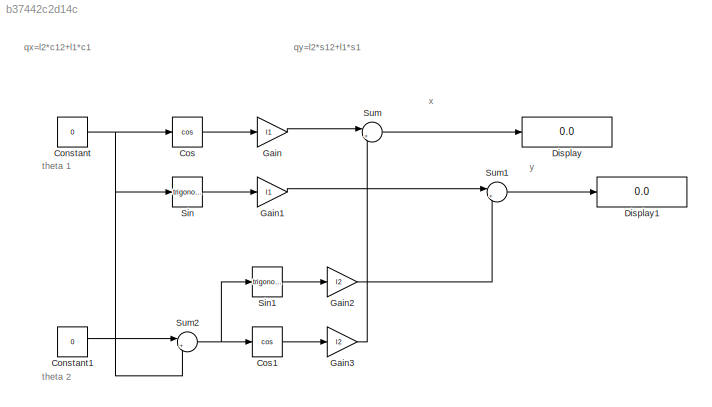
MODEL slx_b37442c2d14c
KIND model
CONFIG AbsTol = auto
CONFIG EnableMultiTasking = off
CONFIG FixedStep = auto
CONFIG MaxStep = auto
CONFIG MinStep = auto
CONFIG RelTol = 1e-3
CONFIG SampleTimeConstraint = Unconstrained
CONFIG SolverName = VariableStepAuto
CONFIG StartTime = 0.0
CONFIG StopTime = 10.0
BLOCK [Constant] Constant
  Value = 0
BLOCK [Constant] Constant1
  Value = 0
BLOCK [Trigonometry] Cos
  Operator = cos
  Ports = [1, 1]
BLOCK [Trigonometry] Cos1
  Operator = cos
  Ports = [1, 1]
BLOCK [Display] Display
  Decimation = 1
  Ports = [1]
BLOCK [Display] Display1
  Decimation = 1
  Ports = [1]
BLOCK [Gain] Gain
  Gain = l1
BLOCK [Gain] Gain1
  Gain = l1
BLOCK [Gain] Gain2
  Gain = l2
BLOCK [Gain] Gain3
  Gain = l2
BLOCK [Trigonometry] Sin
  Ports = [1, 1]
BLOCK [Trigonometry] Sin1
  Ports = [1, 1]
BLOCK [Sum] Sum
  Inputs = |++
  Ports = [2, 1]
BLOCK [Sum] Sum1
  Inputs = |++
  Ports = [2, 1]
BLOCK [Sum] Sum2
  Inputs = |++
  Ports = [2, 1]
ANNOTATION (root): qx=l2*c12+l1*c1
ANNOTATION (root): qy=l2*s12+l1*s1
ANNOTATION (root): theta 1
ANNOTATION (root): theta 2
ANNOTATION (root): x
ANNOTATION (root): y
LINE Constant1:1 -> Sum2:1
NET Constant:1 -> Cos:1, Sin:1, Sum2:2
LINE Cos1:1 -> Gain3:1
LINE Cos:1 -> Gain:1
LINE Gain1:1 -> Sum1:1
LINE Gain2:1 -> Sum1:2
LINE Gain3:1 -> Sum:2
LINE Gain:1 -> Sum:1
LINE Sin1:1 -> Gain2:1
LINE Sin:1 -> Gain1:1
LINE Sum1:1 -> Display1:1
NET Sum2:1 -> Cos1:1, Sin1:1
LINE Sum:1 -> Display:1
note: NET lines group one-source signal fan-out (src -> all destinations, sorted); 1:1 wires keep LINE
